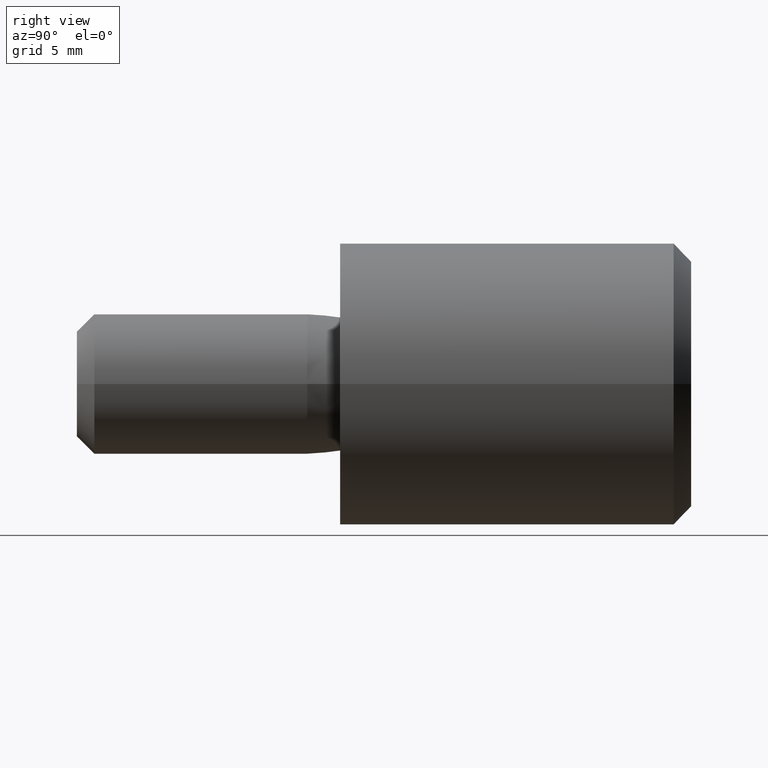
[diagram: clean part render]
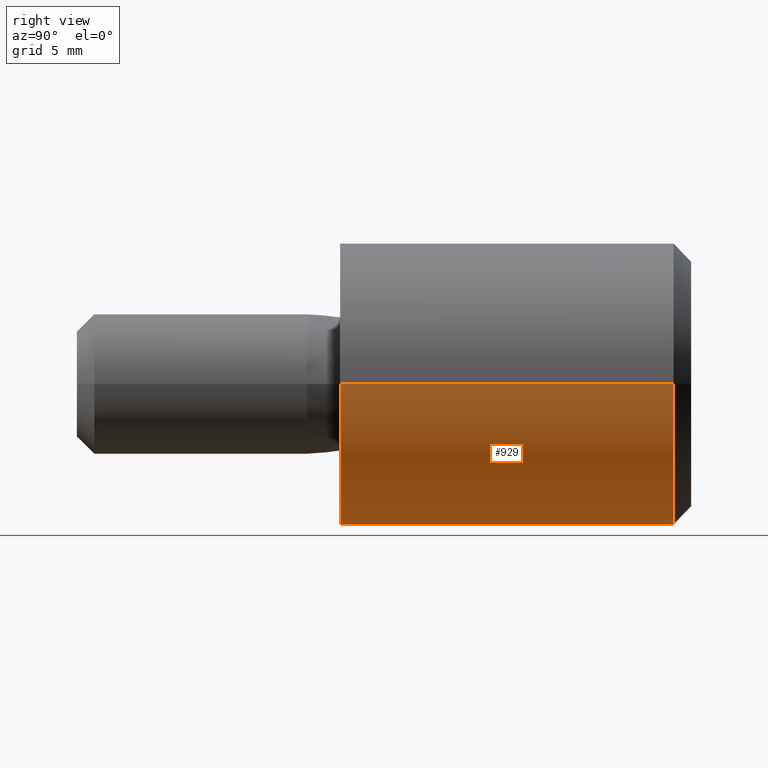
[diagram: same view with one face highlighted and labeled with its STEP entity id]
A machine part, right view. The second image highlights one B-rep face of the part: STEP entity #929.
In plain terms, the highlighted cylindrical surface (partial cylindrical patch) has radius 8 mm, axis along (-0, -1, -0).
Its self-contained STEP definition (entity closure, byte-faithful):
#107 = AXIS2_PLACEMENT_3D ( 'NONE', #1464, #5637, #7701 ) ;
#314 = DIRECTION ( 'NONE',  ( -4.956352788505162800E-017, -1.000000000000000000, -0.0000000000000000000 ) ) ;
#434 = EDGE_CURVE ( 'NONE', #10060, #6466, #5590, .T. ) ;
#767 = ORIENTED_EDGE ( 'NONE', *, *, #434, .F. ) ;
#929 = ADVANCED_FACE ( 'NONE', ( #6420 ), #12694, .T. ) ;
#1010 = DIRECTION ( 'NONE',  ( -4.956352788505162800E-017, -1.000000000000000000, -0.0000000000000000000 ) ) ;
#1464 = CARTESIAN_POINT ( 'NONE',  ( 1.685159948091755500E-015, 19.00000000000000400, 0.0000000000000000000 ) ) ;
#2212 = CARTESIAN_POINT ( 'NONE',  ( 0.0000000000000000000, -15.00000000000000000, 0.0000000000000000000 ) ) ;
#2671 = EDGE_CURVE ( 'NONE', #10060, #12555, #6545, .T. ) ;
#3141 = AXIS2_PLACEMENT_3D ( 'NONE', #2212, #1010, #7927 ) ;
#3396 = CARTESIAN_POINT ( 'NONE',  ( 7.434529182757744400E-016, 0.0000000000000000000, 0.0000000000000000000 ) ) ;
#3686 = VECTOR ( 'NONE', #12626, 1000.000000000000000 ) ;
#4177 = CARTESIAN_POINT ( 'NONE',  ( 8.000000000000001800, 19.00000000000000400, 0.0000000000000000000 ) ) ;
#4381 = DIRECTION ( 'NONE',  ( 1.000000000000000000, -4.956352788505162800E-017, 0.0000000000000000000 ) ) ;
#4971 = ORIENTED_EDGE ( 'NONE', *, *, #5855, .F. ) ;
#5590 = LINE ( 'NONE', #9619, #3686 ) ;
#5637 = DIRECTION ( 'NONE',  ( -4.956352788505160300E-017, -1.000000000000000000, -0.0000000000000000000 ) ) ;
#5696 = CARTESIAN_POINT ( 'NONE',  ( 8.000000000000000000, -4.336808689942017700E-016, 0.0000000000000000000 ) ) ;
#5855 = EDGE_CURVE ( 'NONE', #6466, #12419, #10109, .T. ) ;
#6019 = LINE ( 'NONE', #11987, #9439 ) ;
#6420 = FACE_OUTER_BOUND ( 'NONE', #8916, .T. ) ;
#6466 = VERTEX_POINT ( 'NONE', #6838 ) ;
#6545 = CIRCLE ( 'NONE', #107, 8.000000000000000000 ) ;
#6838 = CARTESIAN_POINT ( 'NONE',  ( -8.000000000000000000, 4.336808689942017700E-016, 9.797174393178825700E-016 ) ) ;
#7701 = DIRECTION ( 'NONE',  ( -1.000000000000000000, 0.0000000000000000000, 0.0000000000000000000 ) ) ;
#7927 = DIRECTION ( 'NONE',  ( 1.000000000000000000, 0.0000000000000000000, 0.0000000000000000000 ) ) ;
#8916 = EDGE_LOOP ( 'NONE', ( #767, #10478, #12324, #4971 ) ) ;
#9439 = VECTOR ( 'NONE', #10807, 1000.000000000000000 ) ;
#9619 = CARTESIAN_POINT ( 'NONE',  ( -8.000000000000000000, -15.00000000000000000, 9.797174393178825700E-016 ) ) ;
#9637 = EDGE_CURVE ( 'NONE', #12555, #12419, #6019, .T. ) ;
#10060 = VERTEX_POINT ( 'NONE', #10097 ) ;
#10097 = CARTESIAN_POINT ( 'NONE',  ( -7.999999999999998200, 19.00000000000000400, 9.797174393178825700E-016 ) ) ;
#10109 = CIRCLE ( 'NONE', #12775, 8.000000000000001800 ) ;
#10478 = ORIENTED_EDGE ( 'NONE', *, *, #2671, .T. ) ;
#10807 = DIRECTION ( 'NONE',  ( -4.956352788505162800E-017, -1.000000000000000000, -0.0000000000000000000 ) ) ;
#11987 = CARTESIAN_POINT ( 'NONE',  ( 8.000000000000000000, -15.00000000000000000, 0.0000000000000000000 ) ) ;
#12324 = ORIENTED_EDGE ( 'NONE', *, *, #9637, .T. ) ;
#12419 = VERTEX_POINT ( 'NONE', #5696 ) ;
#12555 = VERTEX_POINT ( 'NONE', #4177 ) ;
#12626 = DIRECTION ( 'NONE',  ( -4.956352788505162800E-017, -1.000000000000000000, -0.0000000000000000000 ) ) ;
#12694 = CYLINDRICAL_SURFACE ( 'NONE', #3141, 8.000000000000000000 ) ;
#12775 = AXIS2_PLACEMENT_3D ( 'NONE', #3396, #314, #4381 ) ;